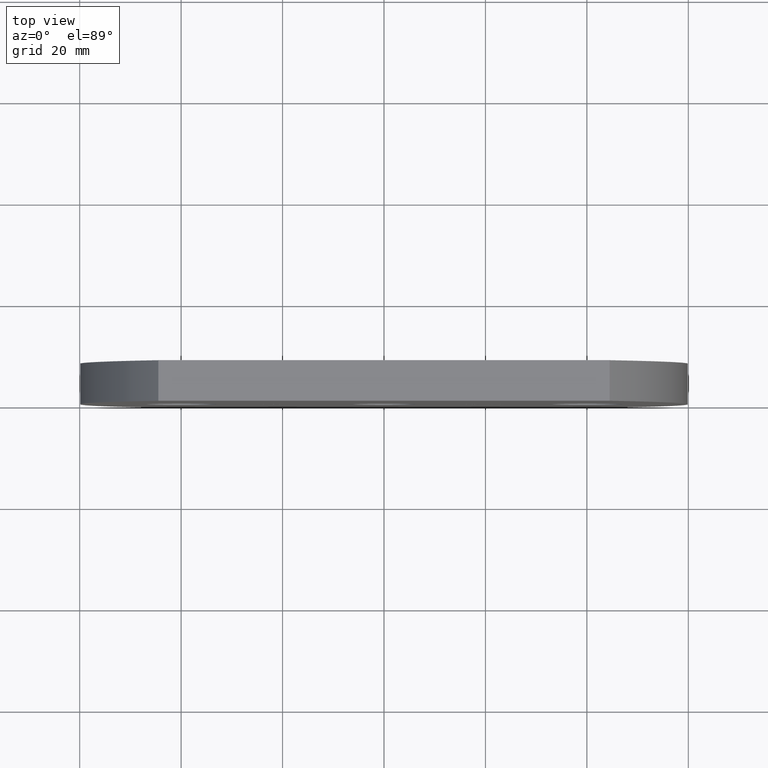
[diagram: clean part render]
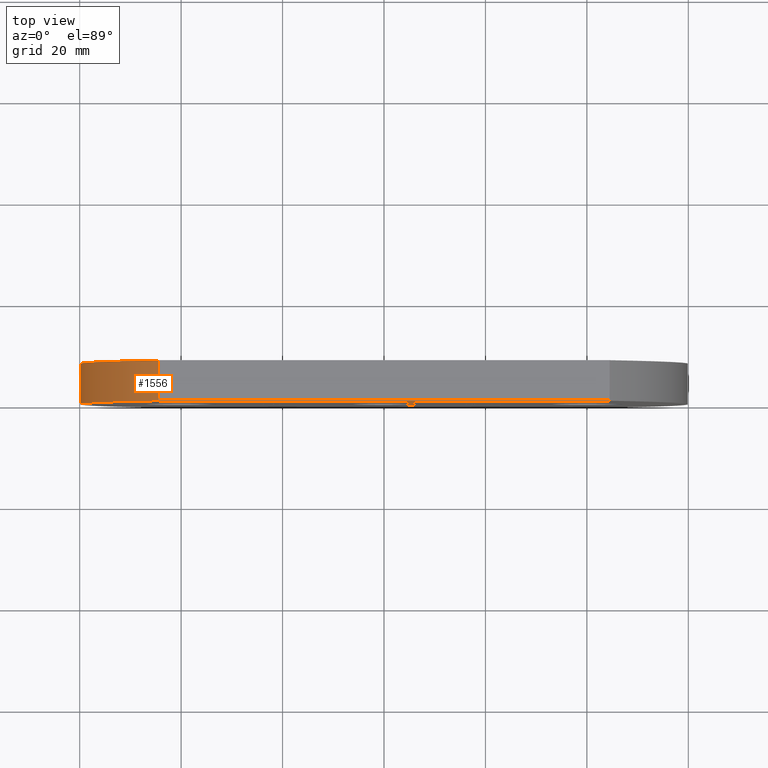
[diagram: same view with one face highlighted and labeled with its STEP entity id]
A machine part, top view. The second image highlights one B-rep face of the part: STEP entity #1556.
In plain terms, the highlighted cylindrical surface (partial cylindrical patch) has radius 59.3629 mm, axis along (-0, -1, -0).
Its self-contained STEP definition (entity closure, byte-faithful):
#238 = EDGE_CURVE ( 'NONE', #1265, #8393, #8206, .T. ) ;
#602 = CARTESIAN_POINT ( 'NONE',  ( -0.6370967741936434100, 8.000000000000000000, 0.0000000000000000000 ) ) ;
#682 = CARTESIAN_POINT ( 'NONE',  ( -0.6370967741936434100, 0.0000000000000000000, 0.0000000000000000000 ) ) ;
#703 = ORIENTED_EDGE ( 'NONE', *, *, #5071, .T. ) ;
#956 = AXIS2_PLACEMENT_3D ( 'NONE', #602, #7539, #4523 ) ;
#1235 = ORIENTED_EDGE ( 'NONE', *, *, #6075, .F. ) ;
#1265 = VERTEX_POINT ( 'NONE', #6115 ) ;
#1556 = ADVANCED_FACE ( 'NONE', ( #6245 ), #6594, .T. ) ;
#1776 = DIRECTION ( 'NONE',  ( -0.0000000000000000000, -1.000000000000000000, -0.0000000000000000000 ) ) ;
#2009 = CARTESIAN_POINT ( 'NONE',  ( -44.49999999999994300, 8.000000000000000000, 40.00000000000000700 ) ) ;
#2573 = VERTEX_POINT ( 'NONE', #2009 ) ;
#2864 = CARTESIAN_POINT ( 'NONE',  ( -44.49999999999996400, 8.000000000000000000, -40.00000000000000000 ) ) ;
#2880 = VECTOR ( 'NONE', #1776, 1000.000000000000000 ) ;
#3733 = LINE ( 'NONE', #8831, #2880 ) ;
#3937 = CARTESIAN_POINT ( 'NONE',  ( -44.49999999999996400, 8.000000000000000000, -40.00000000000000000 ) ) ;
#4523 = DIRECTION ( 'NONE',  ( 0.0000000000000000000, 0.0000000000000000000, -1.000000000000000000 ) ) ;
#4655 = DIRECTION ( 'NONE',  ( 0.0000000000000000000, 1.000000000000000000, 0.0000000000000000000 ) ) ;
#4682 = DIRECTION ( 'NONE',  ( -0.0000000000000000000, -1.000000000000000000, -0.0000000000000000000 ) ) ;
#5046 = ORIENTED_EDGE ( 'NONE', *, *, #10088, .F. ) ;
#5071 = EDGE_CURVE ( 'NONE', #5784, #1265, #8984, .T. ) ;
#5489 = DIRECTION ( 'NONE',  ( 0.0000000000000000000, 0.0000000000000000000, 1.000000000000000000 ) ) ;
#5784 = VERTEX_POINT ( 'NONE', #2864 ) ;
#6075 = EDGE_CURVE ( 'NONE', #2573, #8393, #3733, .T. ) ;
#6115 = CARTESIAN_POINT ( 'NONE',  ( -44.49999999999996400, 0.0000000000000000000, -40.00000000000000000 ) ) ;
#6245 = FACE_OUTER_BOUND ( 'NONE', #9075, .T. ) ;
#6594 = CYLINDRICAL_SURFACE ( 'NONE', #956, 59.36290322580635600 ) ;
#6906 = VECTOR ( 'NONE', #4682, 1000.000000000000000 ) ;
#7058 = CARTESIAN_POINT ( 'NONE',  ( -0.6370967741936434100, 8.000000000000000000, 0.0000000000000000000 ) ) ;
#7146 = CIRCLE ( 'NONE', #7937, 59.36290322580635600 ) ;
#7539 = DIRECTION ( 'NONE',  ( -0.0000000000000000000, -1.000000000000000000, -0.0000000000000000000 ) ) ;
#7937 = AXIS2_PLACEMENT_3D ( 'NONE', #7058, #4655, #5489 ) ;
#8206 = CIRCLE ( 'NONE', #9280, 59.36290322580635600 ) ;
#8352 = CARTESIAN_POINT ( 'NONE',  ( -44.49999999999994300, 0.0000000000000000000, 40.00000000000000700 ) ) ;
#8393 = VERTEX_POINT ( 'NONE', #8352 ) ;
#8806 = ORIENTED_EDGE ( 'NONE', *, *, #238, .T. ) ;
#8831 = CARTESIAN_POINT ( 'NONE',  ( -44.49999999999994300, 8.000000000000000000, 40.00000000000000700 ) ) ;
#8984 = LINE ( 'NONE', #3937, #6906 ) ;
#9075 = EDGE_LOOP ( 'NONE', ( #8806, #1235, #5046, #703 ) ) ;
#9280 = AXIS2_PLACEMENT_3D ( 'NONE', #682, #9376, #9304 ) ;
#9304 = DIRECTION ( 'NONE',  ( 0.0000000000000000000, 0.0000000000000000000, 1.000000000000000000 ) ) ;
#9376 = DIRECTION ( 'NONE',  ( 0.0000000000000000000, 1.000000000000000000, 0.0000000000000000000 ) ) ;
#10088 = EDGE_CURVE ( 'NONE', #5784, #2573, #7146, .T. ) ;